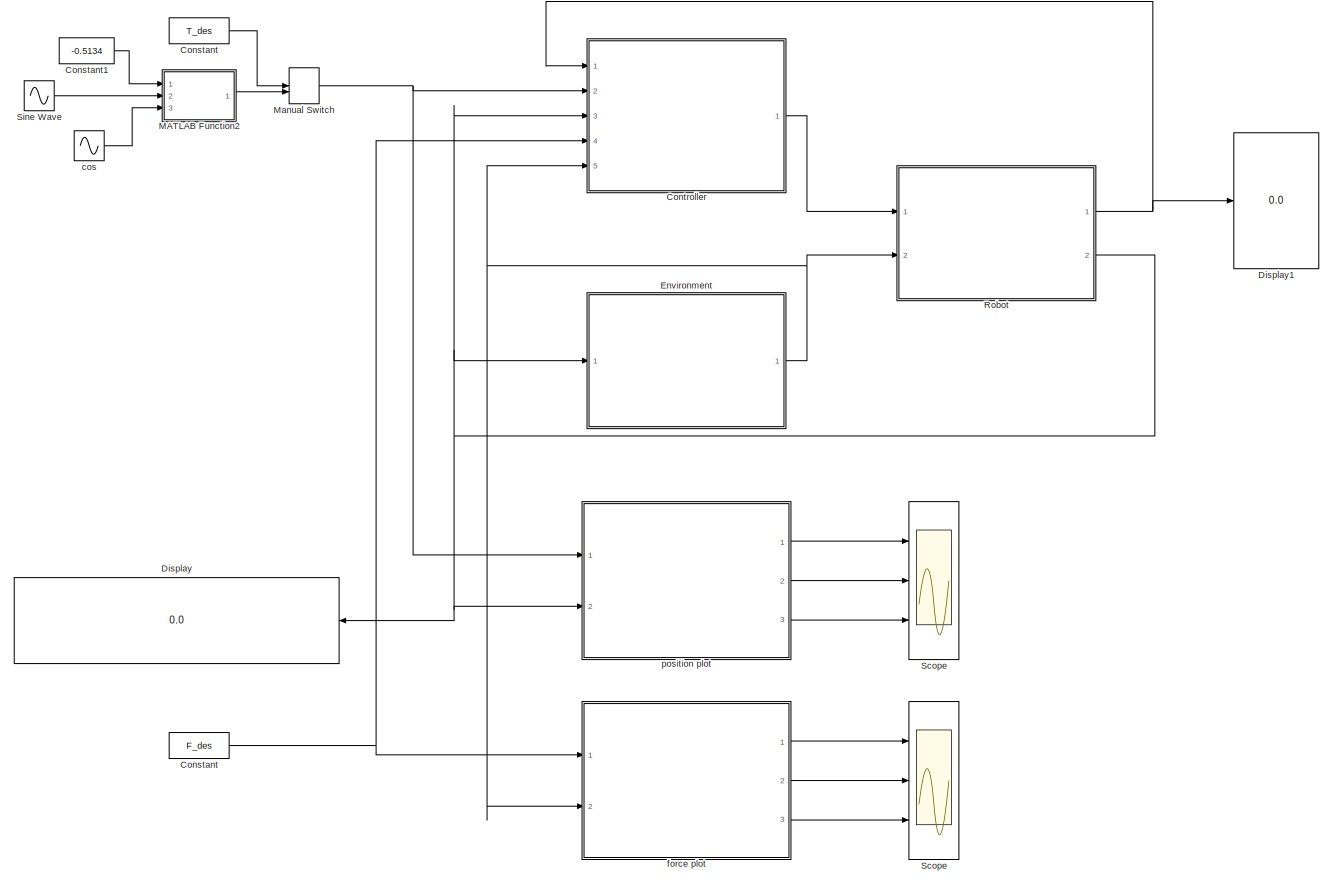
[diagram: root canvas - part 1/1, most of the canvas]
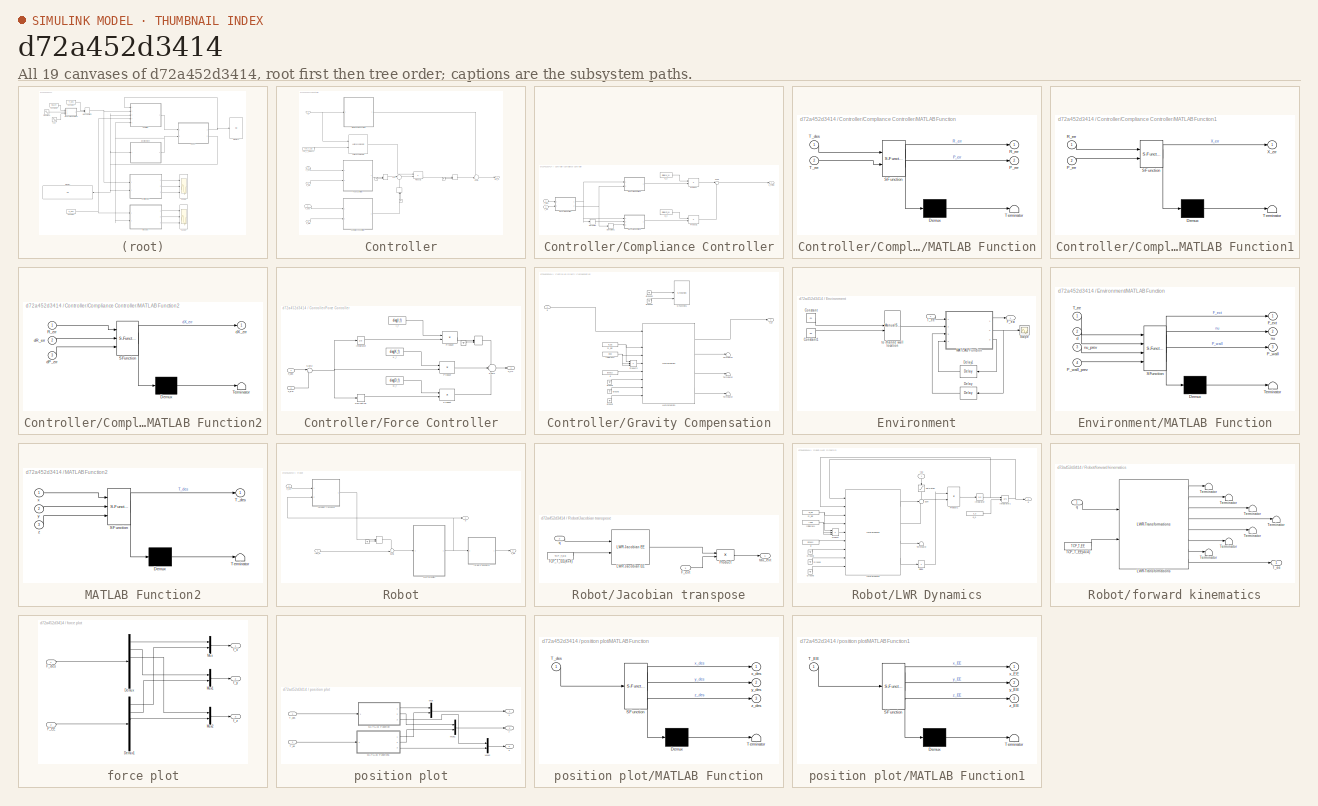
[diagram: thumbnail index - all 19 canvases of the model, root first then tree order]
MODEL slx_d72a452d3414
KIND model
CONFIG AbsTol = auto
CONFIG FixedStep = 0.001
CONFIG InitFcn = %%%%%%%%%%%%%%%%%%%%%%%%%%% Robot's initial\n%Initial position of robot\n%q_0 = [-0.706;0.4326;0.9182;-1.696;-77.63;-1.726;0.2022];\n%T_0 = [0.7508 -4063 0.5208 -0.4738;0.3266 -0.457 -0.8273 -8.688e-06;0.5741 0.7913 -0.2104 0.5303;0 0 0 1]; \n%For the case robot wants to make a circular behavior\nq_0 = [0;0;0;-pi/2;0;0;0];\n%T_0 = [0 0 -1 -0.39;0 1 0 0;1 0 0 0.71;0 0 0 1];\n%Robot is in space \n%q_0 = [-0...<+1141ch>
CONFIG MaxStep = auto
CONFIG MinStep = auto
CONFIG RelTol = 1e-3
CONFIG SampleTimeConstraint = Unconstrained
CONFIG Solver = ode4
CONFIG SolverMode = Auto
CONFIG SolverName = ode4
CONFIG StartTime = 0.0
CONFIG StopTime = 50
BLOCK [Constant] Constant
  Value = T_des
BLOCK [Constant] Constant  
  Value = F_des
BLOCK [Constant] Constant1
  Value = -0.5134
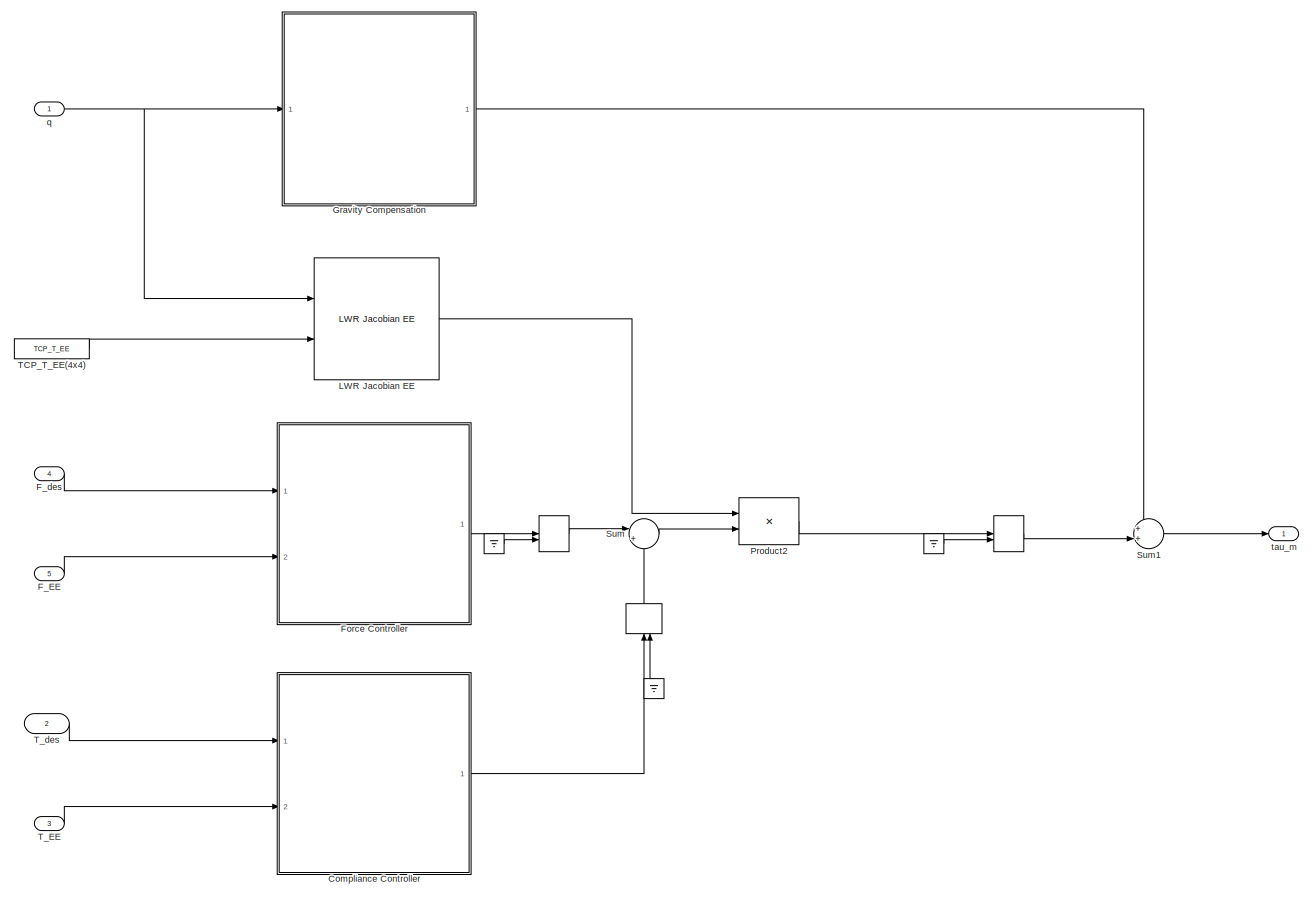
[diagram: Controller - part 1/1, most of the canvas]
BLOCK [SubSystem] Controller
  Ports = [5, 1]
  RequestExecContextInheritance = off
  Variant = off
BLOCK [Ground] Controller/ 
BLOCK [ManualSwitch] Controller/  
BLOCK [ManualSwitch] Controller/   
  CurrentSetting = 0
BLOCK [Ground] Controller/    
BLOCK [Ground] Controller/     
BLOCK [ManualSwitch] Controller/      
BLOCK [SubSystem] Controller/Compliance Controller
  Ports = [2, 1]
  RequestExecContextInheritance = off
  Variant = off
BLOCK [Outport] Controller/Compliance Controller/ u_cmplc
  IconDisplay = Port number
BLOCK [Constant] Controller/Compliance Controller/D_x
  Value = diag(D_x)
BLOCK [Derivative] Controller/Compliance Controller/Derivative
BLOCK [Derivative] Controller/Compliance Controller/Derivative1
BLOCK [Constant] Controller/Compliance Controller/K_x
  Value = diag(K_x)
BLOCK [SubSystem] Controller/Compliance Controller/MATLAB Function
  ErrorFcn = Stateflow.Translate.translate
  PermitHierarchicalResolution = ExplicitOnly
  Ports = [2, 2]
  RequestExecContextInheritance = off
  SFBlockType = MATLAB Function
  TreatAsAtomicUnit = on
  Variant = off
BLOCK [Demux] Controller/Compliance Controller/MATLAB Function/ Demux 
  Outputs = 1
  Ports = [1, 1]
BLOCK [S-Function] Controller/Compliance Controller/MATLAB Function/ SFunction 
  EnableBusSupport = on
  FunctionName = sf_sfun
  PortCounts = [2 3]
  Ports = [2, 3]
  SFunctionDeploymentMode = off
  Tag = Stateflow S-Function RigidCompliance 2
BLOCK [Terminator] Controller/Compliance Controller/MATLAB Function/ Terminator 
BLOCK [Outport] Controller/Compliance Controller/MATLAB Function/P_err
  IconDisplay = Port number
  Port = 2
BLOCK [Outport] Controller/Compliance Controller/MATLAB Function/R_err
  IconDisplay = Port number
BLOCK [Inport] Controller/Compliance Controller/MATLAB Function/T_des
  IconDisplay = Port number
BLOCK [Inport] Controller/Compliance Controller/MATLAB Function/T_ee
  IconDisplay = Port number
  Port = 2
BLOCK [SubSystem] Controller/Compliance Controller/MATLAB Function1
  ErrorFcn = Stateflow.Translate.translate
  PermitHierarchicalResolution = ExplicitOnly
  Ports = [2, 1]
  RequestExecContextInheritance = off
  SFBlockType = MATLAB Function
  TreatAsAtomicUnit = on
  Variant = off
BLOCK [Demux] Controller/Compliance Controller/MATLAB Function1/ Demux 
  Outputs = 1
  Ports = [1, 1]
BLOCK [S-Function] Controller/Compliance Controller/MATLAB Function1/ SFunction 
  EnableBusSupport = on
  FunctionName = sf_sfun
  PortCounts = [2 2]
  Ports = [2, 2]
  SFunctionDeploymentMode = off
  Tag = Stateflow S-Function RigidCompliance 3
BLOCK [Terminator] Controller/Compliance Controller/MATLAB Function1/ Terminator 
BLOCK [Inport] Controller/Compliance Controller/MATLAB Function1/P_err
  IconDisplay = Port number
  Port = 2
BLOCK [Inport] Controller/Compliance Controller/MATLAB Function1/R_err
  IconDisplay = Port number
BLOCK [Outport] Controller/Compliance Controller/MATLAB Function1/X_err
  IconDisplay = Port number
BLOCK [SubSystem] Controller/Compliance Controller/MATLAB Function2
  ErrorFcn = Stateflow.Translate.translate
  PermitHierarchicalResolution = ExplicitOnly
  Ports = [3, 1]
  RequestExecContextInheritance = off
  SFBlockType = MATLAB Function
  TreatAsAtomicUnit = on
  Variant = off
BLOCK [Demux] Controller/Compliance Controller/MATLAB Function2/ Demux 
  Outputs = 1
  Ports = [1, 1]
BLOCK [S-Function] Controller/Compliance Controller/MATLAB Function2/ SFunction 
  EnableBusSupport = on
  FunctionName = sf_sfun
  PortCounts = [3 2]
  Ports = [3, 2]
  SFunctionDeploymentMode = off
  Tag = Stateflow S-Function RigidCompliance 4
BLOCK [Terminator] Controller/Compliance Controller/MATLAB Function2/ Terminator 
BLOCK [Inport] Controller/Compliance Controller/MATLAB Function2/R_err
  IconDisplay = Port number
BLOCK [Inport] Controller/Compliance Controller/MATLAB Function2/dP_err
  IconDisplay = Port number
  Port = 3
BLOCK [Inport] Controller/Compliance Controller/MATLAB Function2/dR_err
  IconDisplay = Port number
  Port = 2
BLOCK [Outport] Controller/Compliance Controller/MATLAB Function2/dX_err
  IconDisplay = Port number
BLOCK [Product] Controller/Compliance Controller/Product
  InputSameDT = off
  Multiplication = Matrix(*)
  OutDataTypeStr = Inherit: Inherit via internal rule
  Ports = [2, 1]
  RndMeth = Floor
  SaturateOnIntegerOverflow = off
BLOCK [Product] Controller/Compliance Controller/Product1
  InputSameDT = off
  Multiplication = Matrix(*)
  OutDataTypeStr = Inherit: Inherit via internal rule
  Ports = [2, 1]
  RndMeth = Floor
  SaturateOnIntegerOverflow = off
BLOCK [Sum] Controller/Compliance Controller/Sum1
  IconShape = round
  InputSameDT = off
  Inputs = |++
  OutDataTypeStr = Inherit: Inherit via internal rule
  Ports = [2, 1]
  SaturateOnIntegerOverflow = off
BLOCK [Inport] Controller/Compliance Controller/T_des
  IconDisplay = Port number
BLOCK [Inport] Controller/Compliance Controller/T_ee
  IconDisplay = Port number
  Port = 2
BLOCK [Inport] Controller/F_EE
  IconDisplay = Port number
  Port = 5
BLOCK [Inport] Controller/F_des
  IconDisplay = Port number
  Port = 4
BLOCK [SubSystem] Controller/Force Controller
  Ports = [2, 1]
  RequestExecContextInheritance = off
  Variant = off
BLOCK [ManualSwitch] Controller/Force Controller/   
BLOCK [Ground] Controller/Force Controller/    
BLOCK [Outport] Controller/Force Controller/ u_frc
  IconDisplay = Port number
BLOCK [Constant] Controller/Force Controller/D_f
  Value = diag(D_f)
BLOCK [Derivative] Controller/Force Controller/Derivative
BLOCK [Inport] Controller/Force Controller/F_EE
  IconDisplay = Port number
  Port = 2
BLOCK [Inport] Controller/Force Controller/F_des
  IconDisplay = Port number
BLOCK [Constant] Controller/Force Controller/I_f
  Value = diag(I_f)
BLOCK [Integrator] Controller/Force Controller/Integrator
  Ports = [1, 1]
BLOCK [Constant] Controller/Force Controller/K_f
  Value = diag(K_f)
BLOCK [Product] Controller/Force Controller/Product
  InputSameDT = off
  Multiplication = Matrix(*)
  OutDataTypeStr = Inherit: Inherit via internal rule
  Ports = [2, 1]
  RndMeth = Floor
  SaturateOnIntegerOverflow = off
BLOCK [Product] Controller/Force Controller/Product 
  InputSameDT = off
  Multiplication = Matrix(*)
  OutDataTypeStr = Inherit: Inherit via internal rule
  Ports = [2, 1]
  RndMeth = Floor
  SaturateOnIntegerOverflow = off
BLOCK [Product] Controller/Force Controller/Product  
  InputSameDT = off
  Multiplication = Matrix(*)
  OutDataTypeStr = Inherit: Inherit via internal rule
  Ports = [2, 1]
  RndMeth = Floor
  SaturateOnIntegerOverflow = off
BLOCK [Sum] Controller/Force Controller/Sum1
  IconShape = round
  InputSameDT = off
  Inputs = +|+|+
  OutDataTypeStr = Inherit: Inherit via internal rule
  Ports = [3, 1]
  SaturateOnIntegerOverflow = off
BLOCK [Sum] Controller/Force Controller/Sum2
  IconShape = round
  InputSameDT = off
  Inputs = |+-
  OutDataTypeStr = Inherit: Inherit via internal rule
  Ports = [2, 1]
  SaturateOnIntegerOverflow = off
BLOCK [SubSystem] Controller/Gravity Compensation
  Ports = [1, 1]
  RequestExecContextInheritance = off
  Variant = off
BLOCK [Ground] Controller/Gravity Compensation/Ground
BLOCK [Ground] Controller/Gravity Compensation/Ground 
BLOCK [Ground] Controller/Gravity Compensation/Ground  
BLOCK [Ground] Controller/Gravity Compensation/Ground1
  Commented = on
BLOCK [Ground] Controller/Gravity Compensation/Ground2
  Commented = on
BLOCK [Reference] Controller/Gravity Compensation/LWR-Dynamics  REF=lwr_dynamics/Dynamics/LWR-Dynamics  (lib defined in mdl_dee2bea1b5f3)
  Ports = [9, 4]
  SourceBlock = lwr_dynamics/Dynamics/LWR-Dynamics
BLOCK [Product] Controller/Gravity Compensation/Product2
  InputSameDT = off
  Inputs = 3
  OutDataTypeStr = Inherit: Inherit via internal rule
  Ports = [3, 1]
  SaturateOnIntegerOverflow = off
BLOCK [S-Function] Controller/Gravity Compensation/S-Function1
  Commented = on
  EnableBusSupport = off
  FunctionName = lbrmgrav_sfun
  Ports = [3, 1]
  SFunctionDeploymentMode = off
BLOCK [Terminator] Controller/Gravity Compensation/Terminator
BLOCK [Terminator] Controller/Gravity Compensation/Terminator 
BLOCK [Terminator] Controller/Gravity Compensation/Terminator  
BLOCK [Constant] Controller/Gravity Compensation/g
  Value = [0 0 9.81]
BLOCK [Constant] Controller/Gravity Compensation/m_EE
  Value = m_EE
BLOCK [Inport] Controller/Gravity Compensation/q
  IconDisplay = Port number
BLOCK [Constant] Controller/Gravity Compensation/rCEE(3x1)
  Value = rCEE
BLOCK [Outport] Controller/Gravity Compensation/u_g
  IconDisplay = Port number
BLOCK [Reference] Controller/LWR Jacobian EE  REF=lwr_dynamics/Kinematics/LWR Jacobian EE  (lib defined in mdl_dee2bea1b5f3)
  Ports = [2, 1]
  SourceBlock = lwr_dynamics/Kinematics/LWR Jacobian EE
BLOCK [Product] Controller/Product2
  InputSameDT = off
  Multiplication = Matrix(*)
  OutDataTypeStr = Inherit: Inherit via internal rule
  Ports = [2, 1]
  RndMeth = Floor
  SaturateOnIntegerOverflow = off
BLOCK [Sum] Controller/Sum
  IconShape = round
  InputSameDT = off
  Inputs = |++
  OutDataTypeStr = Inherit: Inherit via internal rule
  Ports = [2, 1]
  SaturateOnIntegerOverflow = off
BLOCK [Sum] Controller/Sum1
  IconShape = round
  InputSameDT = off
  Inputs = ++|
  OutDataTypeStr = Inherit: Inherit via internal rule
  Ports = [2, 1]
  SaturateOnIntegerOverflow = off
BLOCK [Constant] Controller/TCP_T_EE(4x4)
  Value = TCP_T_EE
BLOCK [Inport] Controller/T_EE
  IconDisplay = Port number
  Port = 3
BLOCK [Inport] Controller/T_des
  IconDisplay = Port number
  Port = 2
BLOCK [Inport] Controller/q
  IconDisplay = Port number
BLOCK [Outport] Controller/tau_m
  IconDisplay = Port number
BLOCK [Display] Display
  Decimation = 1
  Ports = [1]
BLOCK [Display] Display1
  Decimation = 1
  Ports = [1]
BLOCK [SubSystem] Environment
  Ports = [1, 1]
  RequestExecContextInheritance = off
  Variant = off
BLOCK [Constant] Environment/Constant
  Value = d1
BLOCK [Constant] Environment/Constant1
  Value = d2
BLOCK [Delay] Environment/Delay
  DelayLength = 1
  InitialCondition = 0
  InputPortMap = u0
  Ports = [1, 1]
  UseCircularBuffer = on
  UserDataPersistent = on
BLOCK [Delay] Environment/Delay1
  DelayLength = 1
  InitialCondition = zeros(3,1)
  InputPortMap = u0
  Ports = [1, 1]
  UseCircularBuffer = on
  UserDataPersistent = on
BLOCK [Outport] Environment/F_ext
  IconDisplay = Port number
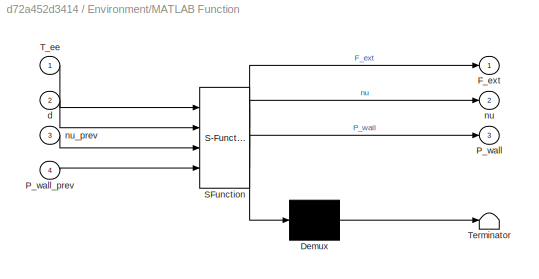
BLOCK [SubSystem] Environment/MATLAB Function
  ErrorFcn = Stateflow.Translate.translate
  PermitHierarchicalResolution = ExplicitOnly
  Ports = [4, 3]
  RequestExecContextInheritance = off
  SFBlockType = MATLAB Function
  TreatAsAtomicUnit = on
  Variant = off
BLOCK [Demux] Environment/MATLAB Function/ Demux 
  Outputs = 1
  Ports = [1, 1]
BLOCK [S-Function] Environment/MATLAB Function/ SFunction 
  EnableBusSupport = on
  FunctionName = sf_sfun
  Parameters = K_w,Pl_w
  PortCounts = [4 4]
  Ports = [4, 4]
  SFunctionDeploymentMode = off
  Tag = Stateflow S-Function RigidCompliance 1
BLOCK [Terminator] Environment/MATLAB Function/ Terminator 
BLOCK [Outport] Environment/MATLAB Function/F_ext
  IconDisplay = Port number
BLOCK [Outport] Environment/MATLAB Function/P_wall
  IconDisplay = Port number
  Port = 3
BLOCK [Inport] Environment/MATLAB Function/P_wall_prev
  IconDisplay = Port number
  Port = 4
BLOCK [Inport] Environment/MATLAB Function/T_ee
  IconDisplay = Port number
BLOCK [Inport] Environment/MATLAB Function/d
  IconDisplay = Port number
  Port = 2
BLOCK [Outport] Environment/MATLAB Function/nu
  IconDisplay = Port number
  Port = 2
BLOCK [Inport] Environment/MATLAB Function/nu_prev
  IconDisplay = Port number
  Port = 3
BLOCK [Scope] Environment/Scope
  Ports = [1]
  ScopeSpecificationString = Simulink.scopes.TimeScopeBlockCfg('CurrentConfiguration', extmgr.ConfigurationSet(extmgr.Configuration('Core','General UI',true),extmgr.Configuration('Core','Source UI',true),extmgr.Configuration('Sources','WiredSimulink',true,'DataLoggingVariableName','ScopeData2'),extmgr.Configuration('Visuals','Time Domain',true,'SerializedDisplays',{struct('MinYLimReal','-0.125','MaxYLimReal','1.125','YLabelRe...<+1394ch>
BLOCK [Inport] Environment/T_ee
  IconDisplay = Port number
BLOCK [ManualSwitch] Environment/to change wall location
BLOCK [SubSystem] MATLAB Function2
  ErrorFcn = Stateflow.Translate.translate
  PermitHierarchicalResolution = ExplicitOnly
  Ports = [3, 1]
  RequestExecContextInheritance = off
  SFBlockType = MATLAB Function
  TreatAsAtomicUnit = on
  Variant = off
BLOCK [Demux] MATLAB Function2/ Demux 
  Outputs = 1
  Ports = [1, 1]
BLOCK [S-Function] MATLAB Function2/ SFunction 
  EnableBusSupport = on
  FunctionName = sf_sfun
  PortCounts = [3 2]
  Ports = [3, 2]
  SFunctionDeploymentMode = off
  Tag = Stateflow S-Function RigidCompliance 7
BLOCK [Terminator] MATLAB Function2/ Terminator 
BLOCK [Outport] MATLAB Function2/T_des
  IconDisplay = Port number
BLOCK [Inport] MATLAB Function2/x
  IconDisplay = Port number
BLOCK [Inport] MATLAB Function2/y
  IconDisplay = Port number
  Port = 2
BLOCK [Inport] MATLAB Function2/z
  IconDisplay = Port number
  Port = 3
BLOCK [ManualSwitch] Manual Switch
BLOCK [SubSystem] Robot
  Ports = [2, 2]
  RequestExecContextInheritance = off
  Variant = off
BLOCK [ManualSwitch] Robot/ 
  CurrentSetting = 0
BLOCK [Ground] Robot/  
BLOCK [Inport] Robot/F_ext
  IconDisplay = Port number
  Port = 2
BLOCK [SubSystem] Robot/Jacobian transpose
  Ports = [2, 1]
  RequestExecContextInheritance = off
  Variant = off
BLOCK [Inport] Robot/Jacobian transpose/F_ext
  IconDisplay = Port number
BLOCK [Reference] Robot/Jacobian transpose/LWR Jacobian EE  REF=lwr_dynamics/Kinematics/LWR Jacobian EE  (lib defined in mdl_dee2bea1b5f3)
  Ports = [2, 1]
  SourceBlock = lwr_dynamics/Kinematics/LWR Jacobian EE
BLOCK [Product] Robot/Jacobian transpose/Product
  InputSameDT = off
  Multiplication = Matrix(*)
  OutDataTypeStr = Inherit: Inherit via internal rule
  Ports = [2, 1]
  RndMeth = Floor
  SaturateOnIntegerOverflow = off
BLOCK [Constant] Robot/Jacobian transpose/TCP_T_EE(4x4)
  Value = TCP_T_EE
BLOCK [Inport] Robot/Jacobian transpose/q
  IconDisplay = Port number
  Port = 2
BLOCK [Outport] Robot/Jacobian transpose/tau_ext
  IconDisplay = Port number
BLOCK [SubSystem] Robot/LWR Dynamics
  Ports = [1, 1]
  RequestExecContextInheritance = off
  Variant = off
BLOCK [Product] Robot/LWR Dynamics/Divide
  InputSameDT = off
  Inputs = /
  Multiplication = Matrix(*)
  OutDataTypeStr = Inherit: Inherit via internal rule
  Ports = [1, 1]
  RndMeth = Floor
  SaturateOnIntegerOverflow = off
BLOCK [Ground] Robot/LWR Dynamics/Ground
BLOCK [Ground] Robot/LWR Dynamics/Ground 
BLOCK [Ground] Robot/LWR Dynamics/Ground  
BLOCK [Integrator] Robot/LWR Dynamics/Integrator
  InitialCondition = zeros(7,1)
  Ports = [1, 1]
BLOCK [Integrator] Robot/LWR Dynamics/Integrator1
  InitialConditionSource = external
  Ports = [2, 1]
BLOCK [Reference] Robot/LWR Dynamics/LWR-Dynamics  REF=lwr_dynamics/Dynamics/LWR-Dynamics  (lib defined in mdl_dee2bea1b5f3)
  Ports = [9, 4]
  SourceBlock = lwr_dynamics/Dynamics/LWR-Dynamics
BLOCK [Product] Robot/LWR Dynamics/Product
  InputSameDT = off
  Inputs = 3
  OutDataTypeStr = Inherit: Inherit via internal rule
  Ports = [3, 1]
  SaturateOnIntegerOverflow = off
BLOCK [Product] Robot/LWR Dynamics/Product1
  InputSameDT = off
  Multiplication = Matrix(*)
  OutDataTypeStr = Inherit: Inherit via internal rule
  Ports = [2, 1]
  SaturateOnIntegerOverflow = off
BLOCK [Saturate] Robot/LWR Dynamics/Saturation
  InputPortMap = u0
  LowerLimit = -30
  Ports = [1, 1]
  UpperLimit = 30
BLOCK [Sum] Robot/LWR Dynamics/Sum
  IconShape = round
  InputSameDT = off
  Inputs = +--
  OutDataTypeStr = Inherit: Inherit via internal rule
  Ports = [3, 1]
  SaturateOnIntegerOverflow = off
BLOCK [Terminator] Robot/LWR Dynamics/Terminator
BLOCK [Constant] Robot/LWR Dynamics/g
  Value = [0 0 9.81]
BLOCK [Constant] Robot/LWR Dynamics/m_EE
  Value = m_EE
BLOCK [Outport] Robot/LWR Dynamics/q
  IconDisplay = Port number
BLOCK [Constant] Robot/LWR Dynamics/q_0
  Value = q_0
BLOCK [Constant] Robot/LWR Dynamics/rCEE(3x1)
  Value = rCEE
BLOCK [Inport] Robot/LWR Dynamics/tau
  IconDisplay = Port number
BLOCK [Sum] Robot/Sum1
  IconShape = round
  InputSameDT = off
  Inputs = ++|
  OutDataTypeStr = Inherit: Inherit via internal rule
  Ports = [2, 1]
  SaturateOnIntegerOverflow = off
BLOCK [Outport] Robot/T_ee
  IconDisplay = Port number
  Port = 2
BLOCK [SubSystem] Robot/forward kinematics
  Ports = [1, 1]
  RequestExecContextInheritance = off
  Variant = off
BLOCK [Reference] Robot/forward kinematics/LWR-Transformations  REF=lwr_dynamics/Kinematics/LWR-Transformations  (lib defined in mdl_dee2bea1b5f3)
  Ports = [2, 8]
  SourceBlock = lwr_dynamics/Kinematics/LWR-Transformations
BLOCK [Constant] Robot/forward kinematics/TCP_T_EE(4x4)
  Value = TCP_T_EE
BLOCK [Outport] Robot/forward kinematics/T_ee 
  IconDisplay = Port number
BLOCK [Terminator] Robot/forward kinematics/Terminator
BLOCK [Terminator] Robot/forward kinematics/Terminator 
BLOCK [Terminator] Robot/forward kinematics/Terminator  
BLOCK [Terminator] Robot/forward kinematics/Terminator   
BLOCK [Terminator] Robot/forward kinematics/Terminator    
BLOCK [Terminator] Robot/forward kinematics/Terminator     
BLOCK [Terminator] Robot/forward kinematics/Terminator      
BLOCK [Inport] Robot/forward kinematics/q
  IconDisplay = Port number
BLOCK [Outport] Robot/q
  IconDisplay = Port number
BLOCK [Inport] Robot/tau_m
  IconDisplay = Port number
BLOCK [Scope] Scope
  NumInputPorts = 3
  Ports = [3]
  ScopeSpecificationString = Simulink.scopes.TimeScopeBlockCfg('CurrentConfiguration', extmgr.ConfigurationSet(extmgr.Configuration('Core','General UI',true),extmgr.Configuration('Core','Source UI',true),extmgr.Configuration('Sources','WiredSimulink',true),extmgr.Configuration('Visuals','Time Domain',true,'SerializedDisplays',{struct('MinYLimReal','-0.52883','MaxYLimReal','-0.37457','YLabelReal','','MinYLimMag','0.00000','Max...<+2728ch>
BLOCK [Scope] Scope 
  NumInputPorts = 3
  Ports = [3]
  ScopeSpecificationString = Simulink.scopes.TimeScopeBlockCfg('CurrentConfiguration', extmgr.ConfigurationSet(extmgr.Configuration('Core','General UI',true),extmgr.Configuration('Core','Source UI',true),extmgr.Configuration('Sources','WiredSimulink',true,'DataLoggingVariableName','ScopeData1'),extmgr.Configuration('Visuals','Time Domain',true,'SerializedDisplays',{struct('MinYLimReal','-1.97947','MaxYLimReal','17.81525','YLa...<+2770ch>
BLOCK [Sin] Sine Wave
  Amplitude = 0.1492
  Frequency = 0.01
  Ports = [0, 1]
  SampleTime = 0
BLOCK [Sin] cos
  Amplitude = -0.1492
  Bias = 0.6795
  Frequency = 0.01
  Phase = pi/2
  Ports = [0, 1]
  SampleTime = 0
BLOCK [SubSystem] force plot
  Ports = [2, 3]
  RequestExecContextInheritance = off
  Variant = off
BLOCK [Demux] force plot/Demux
  DisplayOption = bar
  Outputs = 6
  Ports = [1, 6]
BLOCK [Demux] force plot/Demux1
  DisplayOption = bar
  Outputs = 6
  Ports = [1, 6]
BLOCK [Inport] force plot/F_EE
  IconDisplay = Port number
  Port = 2
BLOCK [Inport] force plot/F_des
  IconDisplay = Port number
BLOCK [Mux] force plot/Mux
  DisplayOption = bar
  Inputs = 2
  Ports = [2, 1]
BLOCK [Mux] force plot/Mux1
  DisplayOption = bar
  Inputs = 2
  Ports = [2, 1]
BLOCK [Mux] force plot/Mux2
  DisplayOption = bar
  Inputs = 2
  Ports = [2, 1]
BLOCK [Outport] force plot/f_x
  IconDisplay = Port number
BLOCK [Outport] force plot/f_y
  IconDisplay = Port number
  Port = 2
BLOCK [Outport] force plot/f_z
  IconDisplay = Port number
  Port = 3
BLOCK [SubSystem] position plot
  Ports = [2, 3]
  RequestExecContextInheritance = off
  Variant = off
BLOCK [SubSystem] position plot/MATLAB Function
  ErrorFcn = Stateflow.Translate.translate
  PermitHierarchicalResolution = ExplicitOnly
  Ports = [1, 3]
  RequestExecContextInheritance = off
  SFBlockType = MATLAB Function
  TreatAsAtomicUnit = on
  Variant = off
BLOCK [Demux] position plot/MATLAB Function/ Demux 
  Outputs = 1
  Ports = [1, 1]
BLOCK [S-Function] position plot/MATLAB Function/ SFunction 
  EnableBusSupport = on
  FunctionName = sf_sfun
  PortCounts = [1 4]
  Ports = [1, 4]
  SFunctionDeploymentMode = off
  Tag = Stateflow S-Function RigidCompliance 5
BLOCK [Terminator] position plot/MATLAB Function/ Terminator 
BLOCK [Inport] position plot/MATLAB Function/T_des
  IconDisplay = Port number
BLOCK [Outport] position plot/MATLAB Function/x_des
  IconDisplay = Port number
BLOCK [Outport] position plot/MATLAB Function/y_des
  IconDisplay = Port number
  Port = 2
BLOCK [Outport] position plot/MATLAB Function/z_des
  IconDisplay = Port number
  Port = 3
BLOCK [SubSystem] position plot/MATLAB Function1
  ErrorFcn = Stateflow.Translate.translate
  PermitHierarchicalResolution = ExplicitOnly
  Ports = [1, 3]
  RequestExecContextInheritance = off
  SFBlockType = MATLAB Function
  TreatAsAtomicUnit = on
  Variant = off
BLOCK [Demux] position plot/MATLAB Function1/ Demux 
  Outputs = 1
  Ports = [1, 1]
BLOCK [S-Function] position plot/MATLAB Function1/ SFunction 
  EnableBusSupport = on
  FunctionName = sf_sfun
  PortCounts = [1 4]
  Ports = [1, 4]
  SFunctionDeploymentMode = off
  Tag = Stateflow S-Function RigidCompliance 6
BLOCK [Terminator] position plot/MATLAB Function1/ Terminator 
BLOCK [Inport] position plot/MATLAB Function1/T_EE
  IconDisplay = Port number
BLOCK [Outport] position plot/MATLAB Function1/x_EE
  IconDisplay = Port number
BLOCK [Outport] position plot/MATLAB Function1/y_EE
  IconDisplay = Port number
  Port = 2
BLOCK [Outport] position plot/MATLAB Function1/z_EE
  IconDisplay = Port number
  Port = 3
BLOCK [Mux] position plot/Mux
  DisplayOption = bar
  Inputs = 2
  Ports = [2, 1]
BLOCK [Mux] position plot/Mux1
  DisplayOption = bar
  Inputs = 2
  Ports = [2, 1]
BLOCK [Mux] position plot/Mux2
  DisplayOption = bar
  Inputs = 2
  Ports = [2, 1]
BLOCK [Inport] position plot/T_des
  IconDisplay = Port number
BLOCK [Inport] position plot/T_ee
  IconDisplay = Port number
  Port = 2
BLOCK [Outport] position plot/x
  IconDisplay = Port number
BLOCK [Outport] position plot/y
  IconDisplay = Port number
  Port = 2
BLOCK [Outport] position plot/z
  IconDisplay = Port number
  Port = 3
NET Constant  :1 -> Controller:4, force plot:1
LINE Constant1:1 -> MATLAB Function2:1
LINE Constant:1 -> Manual Switch:1
LINE Controller/      :1 -> Controller/Sum1:2
LINE Controller/     :1 -> Controller/      :2
LINE Controller/    :1 -> Controller/   :2
LINE Controller/   :1 -> Controller/Sum:1
LINE Controller/  :1 -> Controller/Sum:2
LINE Controller/ :1 -> Controller/  :2
LINE Controller/Compliance Controller/D_x:1 -> Controller/Compliance Controller/Product1:1
LINE Controller/Compliance Controller/Derivative1:1 -> Controller/Compliance Controller/MATLAB Function2:3
LINE Controller/Compliance Controller/Derivative:1 -> Controller/Compliance Controller/MATLAB Function2:2
LINE Controller/Compliance Controller/K_x:1 -> Controller/Compliance Controller/Product:1
LINE Controller/Compliance Controller/MATLAB Function1:1 -> Controller/Compliance Controller/Product:2
LINE Controller/Compliance Controller/MATLAB Function2:1 -> Controller/Compliance Controller/Product1:2
NET Controller/Compliance Controller/MATLAB Function:1 -> Controller/Compliance Controller/Derivative:1, Controller/Compliance Controller/MATLAB Function1:1, Controller/Compliance Controller/MATLAB Function2:1
NET Controller/Compliance Controller/MATLAB Function:2 -> Controller/Compliance Controller/Derivative1:1, Controller/Compliance Controller/MATLAB Function1:2
LINE Controller/Compliance Controller/Product1:1 -> Controller/Compliance Controller/Sum1:2
LINE Controller/Compliance Controller/Product:1 -> Controller/Compliance Controller/Sum1:1
LINE Controller/Compliance Controller/Sum1:1 -> Controller/Compliance Controller/ u_cmplc:1
LINE Controller/Compliance Controller/T_des:1 -> Controller/Compliance Controller/MATLAB Function:1
LINE Controller/Compliance Controller/T_ee:1 -> Controller/Compliance Controller/MATLAB Function:2
LINE Controller/Compliance Controller:1 -> Controller/  :1
LINE Controller/F_EE:1 -> Controller/Force Controller:2
LINE Controller/F_des:1 -> Controller/Force Controller:1
LINE Controller/Force Controller/    :1 -> Controller/Force Controller/   :2
LINE Controller/Force Controller/   :1 -> Controller/Force Controller/Sum1:1
LINE Controller/Force Controller/D_f:1 -> Controller/Force Controller/Product  :1
LINE Controller/Force Controller/Derivative:1 -> Controller/Force Controller/Product  :2
LINE Controller/Force Controller/F_EE:1 -> Controller/Force Controller/Sum2:2
LINE Controller/Force Controller/F_des:1 -> Controller/Force Controller/Sum2:1
LINE Controller/Force Controller/I_f:1 -> Controller/Force Controller/Product :1
LINE Controller/Force Controller/Integrator:1 -> Controller/Force Controller/Product :2
LINE Controller/Force Controller/K_f:1 -> Controller/Force Controller/Product:1
LINE Controller/Force Controller/Product  :1 -> Controller/Force Controller/Sum1:3
LINE Controller/Force Controller/Product :1 -> Controller/Force Controller/   :1
LINE Controller/Force Controller/Product:1 -> Controller/Force Controller/Sum1:2
LINE Controller/Force Controller/Sum1:1 -> Controller/Force Controller/ u_frc:1
NET Controller/Force Controller/Sum2:1 -> Controller/Force Controller/Derivative:1, Controller/Force Controller/Integrator:1, Controller/Force Controller/Product:2
LINE Controller/Force Controller:1 -> Controller/   :1
LINE Controller/Gravity Compensation/Ground  :1 -> Controller/Gravity Compensation/LWR-Dynamics:9
LINE Controller/Gravity Compensation/Ground :1 -> Controller/Gravity Compensation/LWR-Dynamics:8
LINE Controller/Gravity Compensation/Ground1:1 -> Controller/Gravity Compensation/S-Function1:3
LINE Controller/Gravity Compensation/Ground2:1 -> Controller/Gravity Compensation/S-Function1:2
LINE Controller/Gravity Compensation/Ground:1 -> Controller/Gravity Compensation/LWR-Dynamics:7
LINE Controller/Gravity Compensation/LWR-Dynamics:1 -> Controller/Gravity Compensation/u_g:1
LINE Controller/Gravity Compensation/LWR-Dynamics:2 -> Controller/Gravity Compensation/Terminator:1
LINE Controller/Gravity Compensation/LWR-Dynamics:3 -> Controller/Gravity Compensation/Terminator :1
LINE Controller/Gravity Compensation/LWR-Dynamics:4 -> Controller/Gravity Compensation/Terminator  :1
LINE Controller/Gravity Compensation/Product2:1 -> Controller/Gravity Compensation/LWR-Dynamics:5
LINE Controller/Gravity Compensation/g:1 -> Controller/Gravity Compensation/LWR-Dynamics:6
NET Controller/Gravity Compensation/m_EE:1 -> Controller/Gravity Compensation/LWR-Dynamics:3, Controller/Gravity Compensation/Product2:1
LINE Controller/Gravity Compensation/q:1 -> Controller/Gravity Compensation/LWR-Dynamics:1
NET Controller/Gravity Compensation/rCEE(3x1):1 -> Controller/Gravity Compensation/LWR-Dynamics:4, Controller/Gravity Compensation/Product2:2, Controller/Gravity Compensation/Product2:3
LINE Controller/Gravity Compensation:1 -> Controller/Sum1:1
LINE Controller/LWR Jacobian EE:1 -> Controller/Product2:1
LINE Controller/Product2:1 -> Controller/      :1
LINE Controller/Sum1:1 -> Controller/tau_m:1
LINE Controller/Sum:1 -> Controller/Product2:2
LINE Controller/TCP_T_EE(4x4):1 -> Controller/LWR Jacobian EE:2
LINE Controller/T_EE:1 -> Controller/Compliance Controller:2
LINE Controller/T_des:1 -> Controller/Compliance Controller:1
NET Controller/q:1 -> Controller/Gravity Compensation:1, Controller/LWR Jacobian EE:1
LINE Controller:1 -> Robot:1
LINE Environment/Constant1:1 -> Environment/to change wall location:2
LINE Environment/Constant:1 -> Environment/to change wall location:1
LINE Environment/Delay1:1 -> Environment/MATLAB Function:4
LINE Environment/Delay:1 -> Environment/MATLAB Function:3
LINE Environment/MATLAB Function:1 -> Environment/F_ext:1
NET Environment/MATLAB Function:2 -> Environment/Delay:1, Environment/Scope:1
LINE Environment/MATLAB Function:3 -> Environment/Delay1:1
LINE Environment/T_ee:1 -> Environment/MATLAB Function:1
LINE Environment/to change wall location:1 -> Environment/MATLAB Function:2
NET Environment:1 -> Controller:5, Robot:2, force plot:2
LINE MATLAB Function2:1 -> Manual Switch:2
NET Manual Switch:1 -> Controller:2, position plot:1
LINE Robot/  :1 -> Robot/ :2
LINE Robot/ :1 -> Robot/Sum1:1
LINE Robot/F_ext:1 -> Robot/Jacobian transpose:1
LINE Robot/Jacobian transpose/F_ext:1 -> Robot/Jacobian transpose/Product:2
LINE Robot/Jacobian transpose/LWR Jacobian EE:1 -> Robot/Jacobian transpose/Product:1
LINE Robot/Jacobian transpose/Product:1 -> Robot/Jacobian transpose/tau_ext:1
LINE Robot/Jacobian transpose/TCP_T_EE(4x4):1 -> Robot/Jacobian transpose/LWR Jacobian EE:2
LINE Robot/Jacobian transpose/q:1 -> Robot/Jacobian transpose/LWR Jacobian EE:1
LINE Robot/Jacobian transpose:1 -> Robot/ :1
LINE Robot/LWR Dynamics/Divide:1 -> Robot/LWR Dynamics/Product1:1
LINE Robot/LWR Dynamics/Ground  :1 -> Robot/LWR Dynamics/LWR-Dynamics:9
LINE Robot/LWR Dynamics/Ground :1 -> Robot/LWR Dynamics/LWR-Dynamics:8
LINE Robot/LWR Dynamics/Ground:1 -> Robot/LWR Dynamics/LWR-Dynamics:7
NET Robot/LWR Dynamics/Integrator1:1 -> Robot/LWR Dynamics/LWR-Dynamics:1, Robot/LWR Dynamics/q:1
NET Robot/LWR Dynamics/Integrator:1 -> Robot/LWR Dynamics/Integrator1:1, Robot/LWR Dynamics/LWR-Dynamics:2
LINE Robot/LWR Dynamics/LWR-Dynamics:1 -> Robot/LWR Dynamics/Sum:2
LINE Robot/LWR Dynamics/LWR-Dynamics:2 -> Robot/LWR Dynamics/Sum:3
LINE Robot/LWR Dynamics/LWR-Dynamics:3 -> Robot/LWR Dynamics/Terminator:1
LINE Robot/LWR Dynamics/LWR-Dynamics:4 -> Robot/LWR Dynamics/Divide:1
LINE Robot/LWR Dynamics/Product1:1 -> Robot/LWR Dynamics/Integrator:1
LINE Robot/LWR Dynamics/Product:1 -> Robot/LWR Dynamics/LWR-Dynamics:5
LINE Robot/LWR Dynamics/Saturation:1 -> Robot/LWR Dynamics/Sum:1
LINE Robot/LWR Dynamics/Sum:1 -> Robot/LWR Dynamics/Product1:2
LINE Robot/LWR Dynamics/g:1 -> Robot/LWR Dynamics/LWR-Dynamics:6
NET Robot/LWR Dynamics/m_EE:1 -> Robot/LWR Dynamics/LWR-Dynamics:3, Robot/LWR Dynamics/Product:1
LINE Robot/LWR Dynamics/q_0:1 -> Robot/LWR Dynamics/Integrator1:2
NET Robot/LWR Dynamics/rCEE(3x1):1 -> Robot/LWR Dynamics/LWR-Dynamics:4, Robot/LWR Dynamics/Product:2, Robot/LWR Dynamics/Product:3
LINE Robot/LWR Dynamics/tau:1 -> Robot/LWR Dynamics/Saturation:1
NET Robot/LWR Dynamics:1 -> Robot/Jacobian transpose:2, Robot/forward kinematics:1, Robot/q:1
LINE Robot/Sum1:1 -> Robot/LWR Dynamics:1
LINE Robot/forward kinematics/LWR-Transformations:1 -> Robot/forward kinematics/Terminator:1
LINE Robot/forward kinematics/LWR-Transformations:2 -> Robot/forward kinematics/Terminator :1
LINE Robot/forward kinematics/LWR-Transformations:3 -> Robot/forward kinematics/Terminator  :1
LINE Robot/forward kinematics/LWR-Transformations:4 -> Robot/forward kinematics/Terminator   :1
LINE Robot/forward kinematics/LWR-Transformations:5 -> Robot/forward kinematics/Terminator    :1
LINE Robot/forward kinematics/LWR-Transformations:6 -> Robot/forward kinematics/Terminator     :1
LINE Robot/forward kinematics/LWR-Transformations:7 -> Robot/forward kinematics/Terminator      :1
LINE Robot/forward kinematics/LWR-Transformations:8 -> Robot/forward kinematics/T_ee :1
LINE Robot/forward kinematics/TCP_T_EE(4x4):1 -> Robot/forward kinematics/LWR-Transformations:2
LINE Robot/forward kinematics/q:1 -> Robot/forward kinematics/LWR-Transformations:1
LINE Robot/forward kinematics:1 -> Robot/T_ee:1
LINE Robot/tau_m:1 -> Robot/Sum1:2
NET Robot:1 -> Controller:1, Display1:1
NET Robot:2 -> Controller:3, Display:1, Environment:1, position plot:2
LINE Sine Wave:1 -> MATLAB Function2:2
LINE cos:1 -> MATLAB Function2:3
LINE force plot/Demux1:1 -> force plot/Mux:2
LINE force plot/Demux1:2 -> force plot/Mux1:2
LINE force plot/Demux1:3 -> force plot/Mux2:2
LINE force plot/Demux:1 -> force plot/Mux:1
LINE force plot/Demux:2 -> force plot/Mux1:1
LINE force plot/Demux:3 -> force plot/Mux2:1
LINE force plot/F_EE:1 -> force plot/Demux1:1
LINE force plot/F_des:1 -> force plot/Demux:1
LINE force plot/Mux1:1 -> force plot/f_y:1
LINE force plot/Mux2:1 -> force plot/f_z:1
LINE force plot/Mux:1 -> force plot/f_x:1
LINE force plot:1 -> Scope :1
LINE force plot:2 -> Scope :2
LINE force plot:3 -> Scope :3
LINE position plot/MATLAB Function1:1 -> position plot/Mux:2
LINE position plot/MATLAB Function1:2 -> position plot/Mux1:2
LINE position plot/MATLAB Function1:3 -> position plot/Mux2:2
LINE position plot/MATLAB Function:1 -> position plot/Mux:1
LINE position plot/MATLAB Function:2 -> position plot/Mux1:1
LINE position plot/MATLAB Function:3 -> position plot/Mux2:1
LINE position plot/Mux1:1 -> position plot/y:1
LINE position plot/Mux2:1 -> position plot/z:1
LINE position plot/Mux:1 -> position plot/x:1
LINE position plot/T_des:1 -> position plot/MATLAB Function:1
LINE position plot/T_ee:1 -> position plot/MATLAB Function1:1
LINE position plot:1 -> Scope:1
LINE position plot:2 -> Scope:2
LINE position plot:3 -> Scope:3
note: NET lines group one-source signal fan-out (src -> all destinations, sorted); 1:1 wires keep LINE
CHART Environment/MATLAB Function states=1 transitions=1
  STATE_LABEL 'eML_blk_kernel()'
  STATE_LABEL "SCRIPT:\nfunction [F_ext,nu,P_wall] = fcn(T_ee,d, Pl_w, K_w, nu_prev, P_wall_prev)\n%#codegen\n\nP_ee = T_ee(1:3,4);\n\n\nif abs(Pl_w'*P_ee) < abs(d)\n    nu = 0;\n    P_wall = zeros(3,1);\n    F_ext = zeros(6,1);\nelseif nu_prev == 0\n    nu = 1;\n    P_wall = P_ee;\n    F_ext = zeros(6,1);\nelse P_wall = P_wall_prev;\n     F_ext = abs([diag(K_w)*(P_ee-P_wall);zeros(3,1)]);\n     nu = 1;\nend\n"
CHART Controller/Compliance Controller/MATLAB Function states=1 transitions=1
  STATE_LABEL 'eML_blk_kernel()'
  STATE_LABEL "SCRIPT:\nfunction [R_err, P_err] = fcn(T_des,T_ee)\n%#codegen\n\nR_err = T_ee(1:3,1:3)'*T_des(1:3,1:3);\nP_err = T_des(1:3,4)-T_ee(1:3,4);"
CHART Controller/Compliance Controller/MATLAB Function1 states=1 transitions=1
  STATE_LABEL 'eML_blk_kernel()'
  STATE_LABEL "SCRIPT:\nfunction X_err  = fcn(R_err, P_err)\n%#codegen\n\nX_err = [P_err;zeros(3,1)];%rotm2eul(R_err)'];"
CHART Controller/Compliance Controller/MATLAB Function2 states=1 transitions=1
  STATE_LABEL 'eML_blk_kernel()'
  STATE_LABEL "SCRIPT:\nfunction dX_err  = fcn(R_err, dR_err, dP_err)\n%#codegen\n\nomega_str_err = dR_err*R_err';\ndX_err = [dP_err;zeros(3,1)];%-omega_str_err(2,3);omega_str_err(1,3);-omega_str_err(1,2)];"
CHART position plot/MATLAB Function states=1 transitions=1
  STATE_LABEL 'eML_blk_kernel()'
  STATE_LABEL 'SCRIPT:\nfunction [x_des, y_des, z_des] = fcn(T_des)\n%#codegen\n\nx_des = T_des(1,4);\ny_des = T_des(2,4);\nz_des = T_des(3,4);'
CHART position plot/MATLAB Function1 states=1 transitions=1
  STATE_LABEL 'eML_blk_kernel()'
  STATE_LABEL 'SCRIPT:\nfunction [x_EE, y_EE, z_EE] = fcn(T_EE)\n%#codegen\n\nx_EE = T_EE(1,4);\ny_EE = T_EE(2,4);\nz_EE = T_EE(3,4);'
CHART MATLAB Function2 states=1 transitions=1
  STATE_LABEL 'eML_blk_kernel()'
  STATE_LABEL 'SCRIPT:\nfunction T_des = fcn(x,y,z)\n%#codegen\n\nT_des = [1 0 0 x;0 1 0 y;0 0 1 z;0 0 0 1];'
